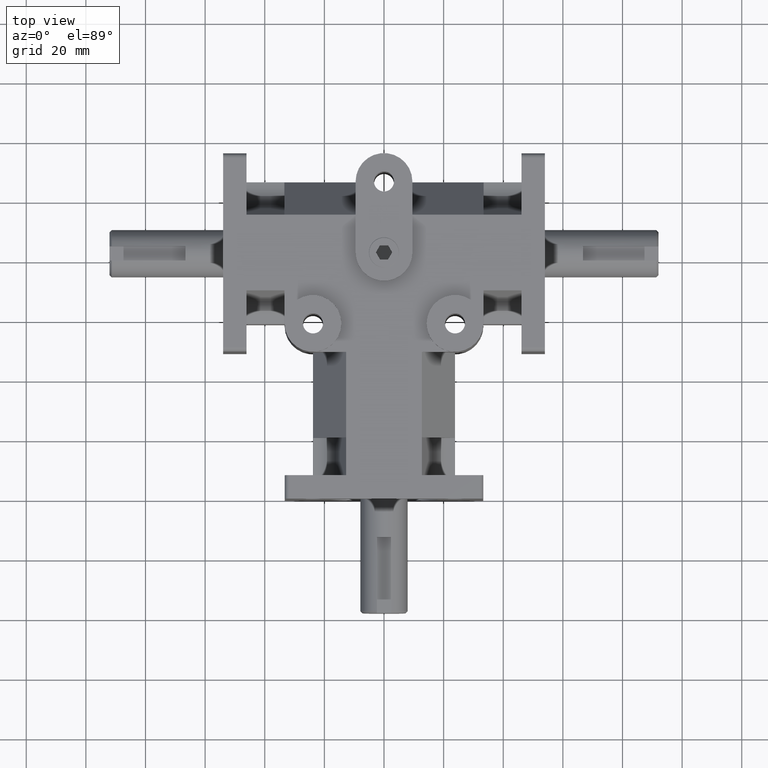
[diagram: clean part render]
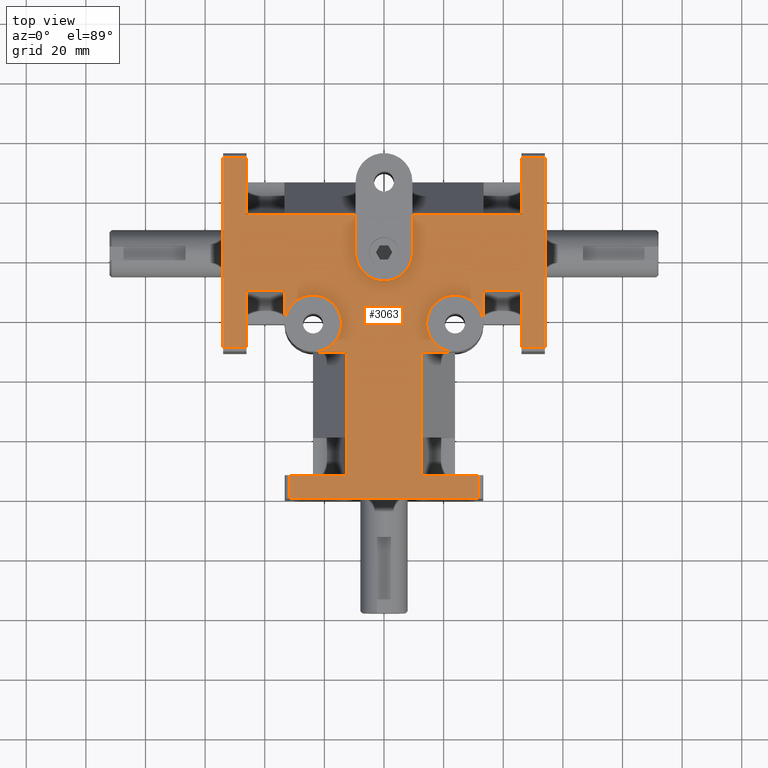
[diagram: same view with one face highlighted and labeled with its STEP entity id]
A machine part, top view. The second image highlights one B-rep face of the part: STEP entity #3063.
In plain terms, the highlighted planar face has unit normal (0, 0, 1).
Its self-contained STEP definition (entity closure, byte-faithful):
#164=PLANE('',#3375);
#333=FACE_OUTER_BOUND('',#531,.T.);
#531=EDGE_LOOP('',(#2730,#2731,#2732,#2733,#2734,#2735,#2736,#2737,#2738,
#2739,#2740,#2741,#2742,#2743,#2744,#2745,#2746,#2747,#2748,#2749,#2750,
#2751,#2752,#2753,#2754,#2755,#2756,#2757,#2758,#2759,#2760,#2761,#2762,
#2763,#2764,#2765,#2766));
#569=LINE('',#4358,#865);
#572=LINE('',#4370,#868);
#578=LINE('',#4397,#874);
#583=LINE('',#4421,#879);
#586=LINE('',#4433,#882);
#591=LINE('',#4457,#887);
#600=LINE('',#4479,#896);
#603=LINE('',#4489,#899);
#617=LINE('',#4527,#913);
#619=LINE('',#4535,#915);
#633=LINE('',#4573,#929);
#635=LINE('',#4581,#931);
#673=LINE('',#4676,#969);
#686=LINE('',#4706,#982);
#699=LINE('',#4736,#995);
#712=LINE('',#4766,#1008);
#726=LINE('',#4798,#1022);
#727=LINE('',#4801,#1023);
#733=LINE('',#4814,#1029);
#810=LINE('',#5079,#1106);
#814=LINE('',#5090,#1110);
#818=LINE('',#5098,#1114);
#822=LINE('',#5107,#1118);
#830=LINE('',#5121,#1126);
#832=LINE('',#5125,#1128);
#838=LINE('',#5136,#1134);
#841=LINE('',#5142,#1137);
#844=LINE('',#5149,#1140);
#845=LINE('',#5150,#1141);
#846=LINE('',#5151,#1142);
#847=LINE('',#5152,#1143);
#848=LINE('',#5153,#1144);
#849=LINE('',#5154,#1145);
#865=VECTOR('',#3482,1.);
#868=VECTOR('',#3493,1.);
#874=VECTOR('',#3517,1.);
#879=VECTOR('',#3538,1.);
#882=VECTOR('',#3549,1.);
#887=VECTOR('',#3570,1.);
#896=VECTOR('',#3587,1.);
#899=VECTOR('',#3598,1.);
#913=VECTOR('',#3626,1.);
#915=VECTOR('',#3634,1.);
#929=VECTOR('',#3662,1.);
#931=VECTOR('',#3670,1.);
#969=VECTOR('',#3758,1.);
#982=VECTOR('',#3789,1.);
#995=VECTOR('',#3820,1.);
#1008=VECTOR('',#3851,1.);
#1022=VECTOR('',#3885,1.);
#1023=VECTOR('',#3888,1.);
#1029=VECTOR('',#3900,1.);
#1106=VECTOR('',#4165,1.);
#1110=VECTOR('',#4177,1.);
#1114=VECTOR('',#4183,1.);
#1118=VECTOR('',#4193,1.);
#1126=VECTOR('',#4207,1.);
#1128=VECTOR('',#4211,1.);
#1134=VECTOR('',#4225,1.);
#1137=VECTOR('',#4234,1.);
#1140=VECTOR('',#4245,1.);
#1141=VECTOR('',#4246,1.);
#1142=VECTOR('',#4247,1.);
#1143=VECTOR('',#4248,1.);
#1144=VECTOR('',#4249,1.);
#1145=VECTOR('',#4250,1.);
#1275=CIRCLE('',#3346,0.375);
#1278=CIRCLE('',#3362,0.375);
#1279=CIRCLE('',#3366,0.375);
#1280=CIRCLE('',#3367,0.375);
#1303=VERTEX_POINT('',#4355);
#1304=VERTEX_POINT('',#4357);
#1306=VERTEX_POINT('',#4363);
#1309=VERTEX_POINT('',#4368);
#1318=VERTEX_POINT('',#4390);
#1321=VERTEX_POINT('',#4395);
#1331=VERTEX_POINT('',#4418);
#1332=VERTEX_POINT('',#4420);
#1334=VERTEX_POINT('',#4426);
#1337=VERTEX_POINT('',#4431);
#1347=VERTEX_POINT('',#4454);
#1348=VERTEX_POINT('',#4456);
#1357=VERTEX_POINT('',#4477);
#1360=VERTEX_POINT('',#4488);
#1377=VERTEX_POINT('',#4525);
#1380=VERTEX_POINT('',#4534);
#1397=VERTEX_POINT('',#4571);
#1400=VERTEX_POINT('',#4580);
#1432=VERTEX_POINT('',#4674);
#1440=VERTEX_POINT('',#4704);
#1448=VERTEX_POINT('',#4734);
#1456=VERTEX_POINT('',#4764);
#1463=VERTEX_POINT('',#4789);
#1465=VERTEX_POINT('',#4800);
#1469=VERTEX_POINT('',#4812);
#1537=VERTEX_POINT('',#5051);
#1538=VERTEX_POINT('',#5052);
#1545=VERTEX_POINT('',#5077);
#1546=VERTEX_POINT('',#5086);
#1548=VERTEX_POINT('',#5089);
#1550=VERTEX_POINT('',#5094);
#1551=VERTEX_POINT('',#5096);
#1553=VERTEX_POINT('',#5106);
#1554=VERTEX_POINT('',#5110);
#1556=VERTEX_POINT('',#5119);
#1557=VERTEX_POINT('',#5123);
#1558=VERTEX_POINT('',#5127);
#1590=EDGE_CURVE('',#1303,#1304,#569,.T.);
#1596=EDGE_CURVE('',#1309,#1306,#572,.T.);
#1608=EDGE_CURVE('',#1321,#1318,#578,.T.);
#1618=EDGE_CURVE('',#1331,#1332,#583,.T.);
#1624=EDGE_CURVE('',#1337,#1334,#586,.T.);
#1634=EDGE_CURVE('',#1347,#1348,#591,.T.);
#1646=EDGE_CURVE('',#1357,#1309,#600,.T.);
#1651=EDGE_CURVE('',#1304,#1360,#603,.T.);
#1671=EDGE_CURVE('',#1377,#1321,#617,.T.);
#1675=EDGE_CURVE('',#1332,#1380,#619,.T.);
#1695=EDGE_CURVE('',#1397,#1337,#633,.T.);
#1699=EDGE_CURVE('',#1348,#1400,#635,.T.);
#1746=EDGE_CURVE('',#1432,#1397,#673,.T.);
#1761=EDGE_CURVE('',#1400,#1440,#686,.T.);
#1776=EDGE_CURVE('',#1448,#1357,#699,.T.);
#1791=EDGE_CURVE('',#1360,#1456,#712,.T.);
#1807=EDGE_CURVE('',#1380,#1463,#726,.T.);
#1808=EDGE_CURVE('',#1463,#1465,#727,.T.);
#1815=EDGE_CURVE('',#1469,#1377,#733,.T.);
#1926=EDGE_CURVE('',#1537,#1538,#1275,.T.);
#1941=EDGE_CURVE('',#1538,#1545,#810,.T.);
#1945=EDGE_CURVE('',#1546,#1548,#814,.T.);
#1949=EDGE_CURVE('',#1551,#1550,#818,.T.);
#1953=EDGE_CURVE('',#1465,#1553,#822,.T.);
#1960=EDGE_CURVE('',#1554,#1553,#1278,.T.);
#1962=EDGE_CURVE('',#1554,#1556,#830,.T.);
#1964=EDGE_CURVE('',#1557,#1537,#832,.T.);
#1966=EDGE_CURVE('',#1551,#1558,#1279,.T.);
#1970=EDGE_CURVE('',#1558,#1548,#1280,.T.);
#1972=EDGE_CURVE('',#1557,#1448,#838,.T.);
#1975=EDGE_CURVE('',#1556,#1432,#841,.T.);
#1978=EDGE_CURVE('',#1306,#1303,#844,.T.);
#1979=EDGE_CURVE('',#1440,#1545,#845,.T.);
#1980=EDGE_CURVE('',#1334,#1347,#846,.T.);
#1981=EDGE_CURVE('',#1318,#1331,#847,.T.);
#1982=EDGE_CURVE('',#1550,#1469,#848,.T.);
#1983=EDGE_CURVE('',#1456,#1546,#849,.T.);
#2730=ORIENTED_EDGE('',*,*,#1590,.F.);
#2731=ORIENTED_EDGE('',*,*,#1978,.F.);
#2732=ORIENTED_EDGE('',*,*,#1596,.F.);
#2733=ORIENTED_EDGE('',*,*,#1646,.F.);
#2734=ORIENTED_EDGE('',*,*,#1776,.F.);
#2735=ORIENTED_EDGE('',*,*,#1972,.F.);
#2736=ORIENTED_EDGE('',*,*,#1964,.T.);
#2737=ORIENTED_EDGE('',*,*,#1926,.T.);
#2738=ORIENTED_EDGE('',*,*,#1941,.T.);
#2739=ORIENTED_EDGE('',*,*,#1979,.F.);
#2740=ORIENTED_EDGE('',*,*,#1761,.F.);
#2741=ORIENTED_EDGE('',*,*,#1699,.F.);
#2742=ORIENTED_EDGE('',*,*,#1634,.F.);
#2743=ORIENTED_EDGE('',*,*,#1980,.F.);
#2744=ORIENTED_EDGE('',*,*,#1624,.F.);
#2745=ORIENTED_EDGE('',*,*,#1695,.F.);
#2746=ORIENTED_EDGE('',*,*,#1746,.F.);
#2747=ORIENTED_EDGE('',*,*,#1975,.F.);
#2748=ORIENTED_EDGE('',*,*,#1962,.F.);
#2749=ORIENTED_EDGE('',*,*,#1960,.T.);
#2750=ORIENTED_EDGE('',*,*,#1953,.F.);
#2751=ORIENTED_EDGE('',*,*,#1808,.F.);
#2752=ORIENTED_EDGE('',*,*,#1807,.F.);
#2753=ORIENTED_EDGE('',*,*,#1675,.F.);
#2754=ORIENTED_EDGE('',*,*,#1618,.F.);
#2755=ORIENTED_EDGE('',*,*,#1981,.F.);
#2756=ORIENTED_EDGE('',*,*,#1608,.F.);
#2757=ORIENTED_EDGE('',*,*,#1671,.F.);
#2758=ORIENTED_EDGE('',*,*,#1815,.F.);
#2759=ORIENTED_EDGE('',*,*,#1982,.F.);
#2760=ORIENTED_EDGE('',*,*,#1949,.F.);
#2761=ORIENTED_EDGE('',*,*,#1966,.T.);
#2762=ORIENTED_EDGE('',*,*,#1970,.T.);
#2763=ORIENTED_EDGE('',*,*,#1945,.F.);
#2764=ORIENTED_EDGE('',*,*,#1983,.F.);
#2765=ORIENTED_EDGE('',*,*,#1791,.F.);
#2766=ORIENTED_EDGE('',*,*,#1651,.F.);
#3063=ADVANCED_FACE('',(#333),#164,.T.);
#3346=AXIS2_PLACEMENT_3D('',#5053,#4139,#4140);
#3362=AXIS2_PLACEMENT_3D('',#5117,#4202,#4203);
#3366=AXIS2_PLACEMENT_3D('',#5129,#4215,#4216);
#3367=AXIS2_PLACEMENT_3D('',#5133,#4220,#4221);
#3375=AXIS2_PLACEMENT_3D('',#5148,#4243,#4244);
#3482=DIRECTION('',(-1.,0.,0.));
#3493=DIRECTION('',(1.,0.,0.));
#3517=DIRECTION('',(0.,-1.,0.));
#3538=DIRECTION('',(0.,1.,0.));
#3549=DIRECTION('',(-1.,0.,0.));
#3570=DIRECTION('',(1.,0.,0.));
#3587=DIRECTION('',(0.,1.,0.));
#3598=DIRECTION('',(0.,1.,0.));
#3626=DIRECTION('',(1.,0.,0.));
#3634=DIRECTION('',(1.,0.,0.));
#3662=DIRECTION('',(0.,-1.,0.));
#3670=DIRECTION('',(0.,-1.,0.));
#3758=DIRECTION('',(-1.,0.,0.));
#3789=DIRECTION('',(1.,0.,0.));
#3820=DIRECTION('',(1.,0.,0.));
#3851=DIRECTION('',(-1.,0.,0.));
#3885=DIRECTION('',(0.,1.,0.));
#3888=DIRECTION('',(0.,1.,0.));
#3900=DIRECTION('',(0.,-1.,0.));
#4139=DIRECTION('center_axis',(0.,0.,-1.));
#4140=DIRECTION('ref_axis',(1.,0.,0.));
#4165=DIRECTION('',(0.,1.,0.));
#4177=DIRECTION('',(0.,-1.,0.));
#4183=DIRECTION('',(-1.,0.,0.));
#4193=DIRECTION('',(-1.,0.,0.));
#4202=DIRECTION('center_axis',(0.,0.,-1.));
#4203=DIRECTION('ref_axis',(1.,0.,0.));
#4207=DIRECTION('',(0.,1.,0.));
#4211=DIRECTION('',(0.,-1.,0.));
#4215=DIRECTION('center_axis',(0.,0.,-1.));
#4216=DIRECTION('ref_axis',(1.,0.,0.));
#4220=DIRECTION('center_axis',(0.,0.,-1.));
#4221=DIRECTION('ref_axis',(1.,0.,0.));
#4225=DIRECTION('',(1.,0.,0.));
#4234=DIRECTION('',(-1.,0.,0.));
#4243=DIRECTION('center_axis',(0.,0.,1.));
#4244=DIRECTION('ref_axis',(-1.,0.,0.));
#4245=DIRECTION('',(0.,-1.,0.));
#4246=DIRECTION('',(1.,0.,0.));
#4247=DIRECTION('',(0.,1.,0.));
#4248=DIRECTION('',(-1.,0.,0.));
#4249=DIRECTION('',(0.,-1.,0.));
#4250=DIRECTION('',(-1.,0.,0.));
#4355=CARTESIAN_POINT('',(2.125,2.,0.9375));
#4357=CARTESIAN_POINT('',(1.815,2.,0.9375));
#4358=CARTESIAN_POINT('',(0.9075,2.,0.9375));
#4363=CARTESIAN_POINT('',(2.125,4.5,0.9375));
#4368=CARTESIAN_POINT('',(1.815,4.5,0.9375));
#4370=CARTESIAN_POINT('',(1.0625,4.5,0.9375));
#4390=CARTESIAN_POINT('',(1.25,0.,0.9375));
#4395=CARTESIAN_POINT('',(1.25,0.31,0.9375));
#4397=CARTESIAN_POINT('',(1.25,1.20989507691196,0.9375));
#4418=CARTESIAN_POINT('',(-1.25,0.,0.9375));
#4420=CARTESIAN_POINT('',(-1.25,0.31,0.9375));
#4421=CARTESIAN_POINT('',(-1.25,1.36489507691196,0.9375));
#4426=CARTESIAN_POINT('',(-2.125,2.,0.9375));
#4431=CARTESIAN_POINT('',(-1.815,2.,0.9375));
#4433=CARTESIAN_POINT('',(-1.0625,2.,0.9375));
#4454=CARTESIAN_POINT('',(-2.125,4.5,0.9375));
#4456=CARTESIAN_POINT('',(-1.815,4.5,0.9375));
#4457=CARTESIAN_POINT('',(-0.9075,4.5,0.9375));
#4477=CARTESIAN_POINT('',(1.815,3.75,0.9375));
#4479=CARTESIAN_POINT('',(1.815,4.1875,0.9375));
#4488=CARTESIAN_POINT('',(1.815,2.75,0.9375));
#4489=CARTESIAN_POINT('',(1.815,2.36614507691196,0.9375));
#4525=CARTESIAN_POINT('',(0.5,0.31,0.9375));
#4527=CARTESIAN_POINT('',(0.9375,0.31,0.9375));
#4534=CARTESIAN_POINT('',(-0.5,0.31,0.9375));
#4535=CARTESIAN_POINT('',(-0.46875,0.31,0.9375));
#4571=CARTESIAN_POINT('',(-1.815,2.75,0.9375));
#4573=CARTESIAN_POINT('',(-1.815,2.3125,0.9375));
#4580=CARTESIAN_POINT('',(-1.815,3.75,0.9375));
#4581=CARTESIAN_POINT('',(-1.815,3.30364507691196,0.9375));
#4674=CARTESIAN_POINT('',(-1.315,2.75,0.9375));
#4676=CARTESIAN_POINT('',(-0.45375,2.75,0.9375));
#4704=CARTESIAN_POINT('',(-1.315,3.75,0.9375));
#4706=CARTESIAN_POINT('',(-0.1875,3.75,0.9375));
#4734=CARTESIAN_POINT('',(1.315,3.75,0.9375));
#4736=CARTESIAN_POINT('',(-0.1875,3.75,0.9375));
#4764=CARTESIAN_POINT('',(1.315,2.75,0.9375));
#4766=CARTESIAN_POINT('',(0.328125,2.75,0.9375));
#4789=CARTESIAN_POINT('',(-0.5,0.81,0.9375));
#4798=CARTESIAN_POINT('',(-0.5,2.17864507691196,0.9375));
#4800=CARTESIAN_POINT('',(-0.5,1.9375,0.9375));
#4801=CARTESIAN_POINT('',(-0.5,2.17864507691196,0.9375));
#4812=CARTESIAN_POINT('',(0.5,0.81,0.9375));
#4814=CARTESIAN_POINT('',(0.5,1.36489507691196,0.9375));
#5051=CARTESIAN_POINT('',(0.375,3.25,0.9375));
#5052=CARTESIAN_POINT('',(-0.375,3.25,0.9375));
#5053=CARTESIAN_POINT('Origin',(0.,3.25,0.9375));
#5077=CARTESIAN_POINT('',(-0.375,3.75,0.9375));
#5079=CARTESIAN_POINT('',(-0.375,2.83489507691196,0.9375));
#5086=CARTESIAN_POINT('',(1.3125,2.75,0.9375));
#5089=CARTESIAN_POINT('',(1.3125,2.3125,0.9375));
#5090=CARTESIAN_POINT('',(1.3125,2.3125,0.9375));
#5094=CARTESIAN_POINT('',(0.5,1.9375,0.9375));
#5096=CARTESIAN_POINT('',(0.9375,1.9375,0.9375));
#5098=CARTESIAN_POINT('',(-0.9375,1.9375,0.9375));
#5106=CARTESIAN_POINT('',(-0.9375,1.9375,0.9375));
#5107=CARTESIAN_POINT('',(-0.9375,1.9375,0.9375));
#5110=CARTESIAN_POINT('',(-1.3125,2.3125,0.9375));
#5117=CARTESIAN_POINT('Origin',(-0.9375,2.3125,0.9375));
#5119=CARTESIAN_POINT('',(-1.3125,2.75,0.9375));
#5121=CARTESIAN_POINT('',(-1.3125,2.3125,0.9375));
#5123=CARTESIAN_POINT('',(0.375,3.75,0.9375));
#5125=CARTESIAN_POINT('',(0.375,3.30364507691196,0.9375));
#5127=CARTESIAN_POINT('',(0.5625,2.3125,0.9375));
#5129=CARTESIAN_POINT('Origin',(0.9375,2.3125,0.9375));
#5133=CARTESIAN_POINT('Origin',(0.9375,2.3125,0.9375));
#5136=CARTESIAN_POINT('',(-0.1875,3.75,0.9375));
#5142=CARTESIAN_POINT('',(-0.45375,2.75,0.9375));
#5148=CARTESIAN_POINT('Origin',(-1.38777878078145E-17,2.41979015382392,
0.9375));
#5149=CARTESIAN_POINT('',(2.125,4.56,0.9375));
#5150=CARTESIAN_POINT('',(-0.1875,3.75,0.9375));
#5151=CARTESIAN_POINT('',(-2.125,1.94,0.9375));
#5152=CARTESIAN_POINT('',(1.31,0.,0.9375));
#5153=CARTESIAN_POINT('',(0.5,1.36489507691196,0.9375));
#5154=CARTESIAN_POINT('',(0.328125,2.75,0.9375));